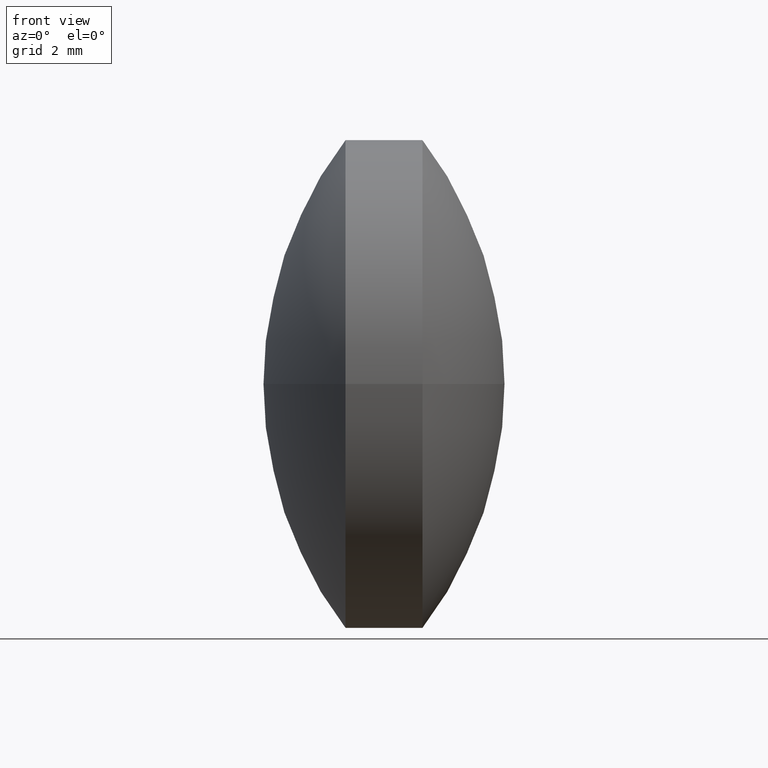
[diagram: clean part render]
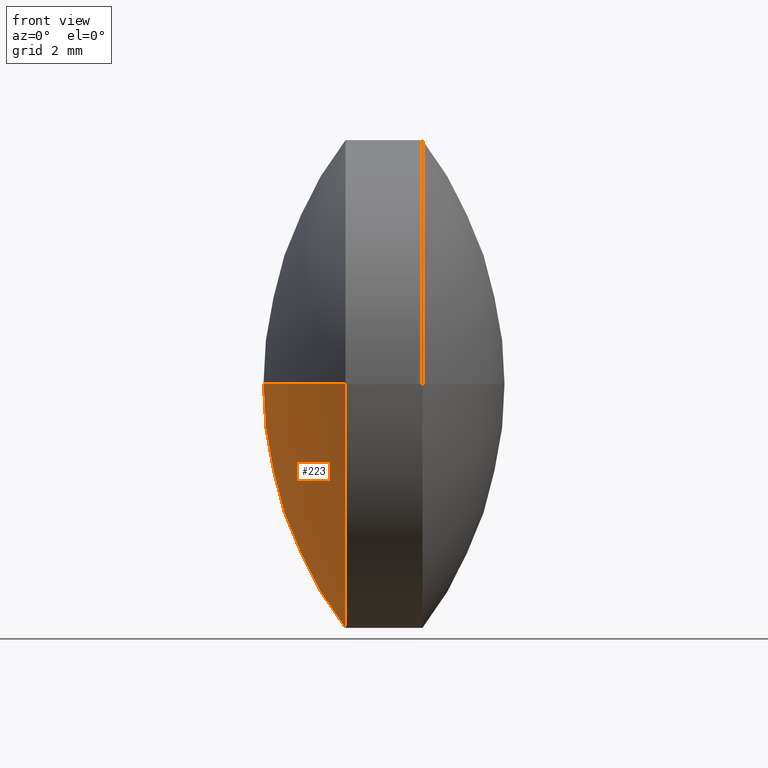
[diagram: same view with one face highlighted and labeled with its STEP entity id]
A machine part, front view. The second image highlights one B-rep face of the part: STEP entity #223.
In plain terms, the highlighted spherical surface has radius 10.5319 mm.
Its self-contained STEP definition (entity closure, byte-faithful):
#3 = AXIS2_PLACEMENT_3D ( 'NONE', #51, #215, #181 ) ;
#23 = CARTESIAN_POINT ( 'NONE',  ( 50.63137366775140400, 24.30805651159238700, 0.0000000000000000000 ) ) ;
#24 = EDGE_CURVE ( 'NONE', #27, #64, #136, .T. ) ;
#27 = VERTEX_POINT ( 'NONE', #210 ) ;
#29 = CARTESIAN_POINT ( 'NONE',  ( 50.63137366775140400, 24.30805651159238700, 0.0000000000000000000 ) ) ;
#37 = ORIENTED_EDGE ( 'NONE', *, *, #24, .F. ) ;
#51 = CARTESIAN_POINT ( 'NONE',  ( 42.22906260161697400, 24.30805651159239400, 0.0000000000000000000 ) ) ;
#53 = CARTESIAN_POINT ( 'NONE',  ( 42.22906260161697400, 17.95805651159240000, -7.776507174585683300E-016 ) ) ;
#54 = DIRECTION ( 'NONE',  ( 0.0000000000000000000, 1.000000000000000000, 1.224646799147353200E-016 ) ) ;
#64 = VERTEX_POINT ( 'NONE', #237 ) ;
#74 = CARTESIAN_POINT ( 'NONE',  ( 50.63137366775140400, 24.30805651159238700, 0.0000000000000000000 ) ) ;
#99 = DIRECTION ( 'NONE',  ( 8.609878887047754700E-032, 1.224646799147353200E-016, -1.000000000000000000 ) ) ;
#102 = AXIS2_PLACEMENT_3D ( 'NONE', #23, #234, #208 ) ;
#136 = CIRCLE ( 'NONE', #102, 10.53191963756298900 ) ;
#146 = DIRECTION ( 'NONE',  ( 6.588441749174644500E-016, 1.000000000000000000, 0.0000000000000000000 ) ) ;
#148 = EDGE_CURVE ( 'NONE', #27, #235, #271, .T. ) ;
#167 = DIRECTION ( 'NONE',  ( 0.0000000000000000000, 0.0000000000000000000, -1.000000000000000000 ) ) ;
#173 = EDGE_CURVE ( 'NONE', #235, #64, #209, .T. ) ;
#181 = DIRECTION ( 'NONE',  ( -1.092739197465706300E-015, -1.000000000000000000, 0.0000000000000000000 ) ) ;
#192 = EDGE_LOOP ( 'NONE', ( #246, #278, #37 ) ) ;
#196 = SPHERICAL_SURFACE ( 'NONE', #294, 10.53191963756298900 ) ;
#197 = FACE_OUTER_BOUND ( 'NONE', #192, .T. ) ;
#208 = DIRECTION ( 'NONE',  ( 1.000000000000000000, 0.0000000000000000000, 0.0000000000000000000 ) ) ;
#209 = CIRCLE ( 'NONE', #259, 10.53191963756298900 ) ;
#210 = CARTESIAN_POINT ( 'NONE',  ( 42.22906260161698100, 30.65805651159238800, 0.0000000000000000000 ) ) ;
#215 = DIRECTION ( 'NONE',  ( -1.000000000000000000, 7.030499645320012300E-016, -0.0000000000000000000 ) ) ;
#223 = ADVANCED_FACE ( 'NONE', ( #197 ), #196, .T. ) ;
#234 = DIRECTION ( 'NONE',  ( 0.0000000000000000000, 0.0000000000000000000, 1.000000000000000000 ) ) ;
#235 = VERTEX_POINT ( 'NONE', #53 ) ;
#237 = CARTESIAN_POINT ( 'NONE',  ( 40.09945403018841100, 24.30805651159239400, 0.0000000000000000000 ) ) ;
#246 = ORIENTED_EDGE ( 'NONE', *, *, #148, .T. ) ;
#259 = AXIS2_PLACEMENT_3D ( 'NONE', #74, #99, #54 ) ;
#271 = CIRCLE ( 'NONE', #3, 6.349999999999994300 ) ;
#278 = ORIENTED_EDGE ( 'NONE', *, *, #173, .T. ) ;
#294 = AXIS2_PLACEMENT_3D ( 'NONE', #29, #167, #146 ) ;